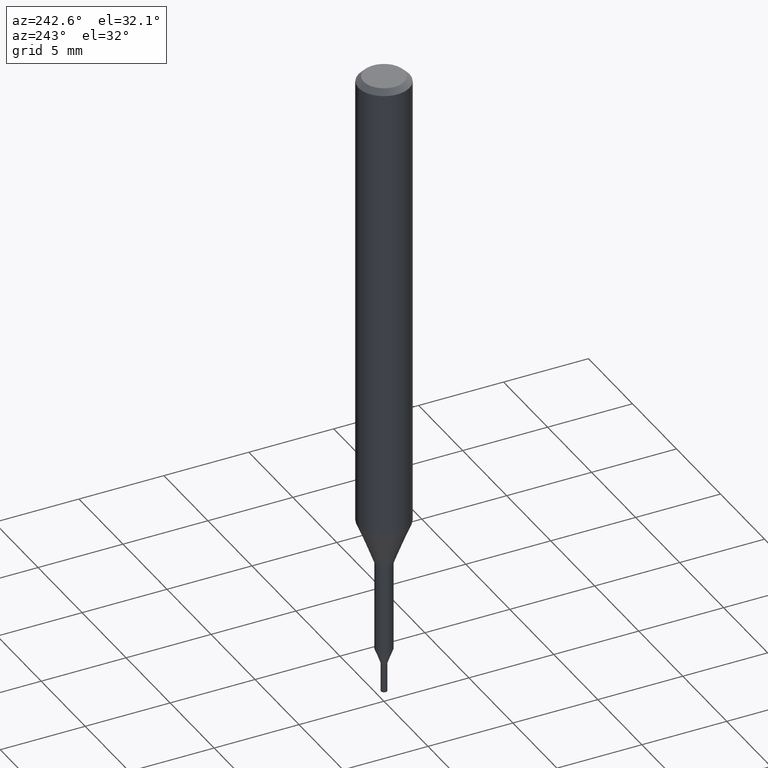
[diagram: clean part render]
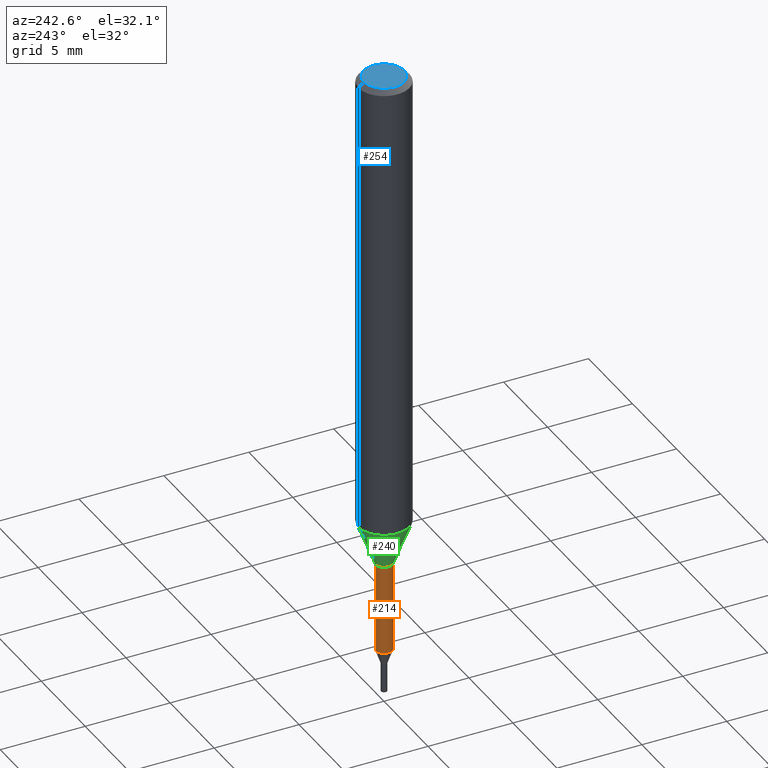
[diagram: same view with three faces highlighted in distinct colors, each labeled with its STEP entity id]
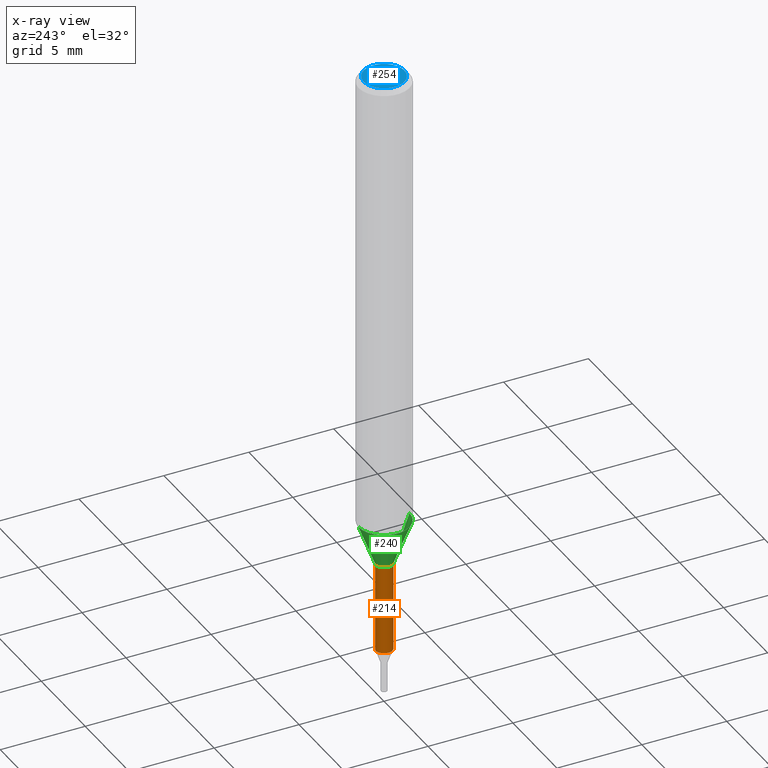
[diagram: x-ray of the same camera — body ghosted, the three highlighted faces saturated]
A machine part, auxiliary view with three faces highlighted in distinct colors.
The next image is the same camera in x-ray (body ghosted, the three faces saturated) — at least one of them is partly hidden behind the body in this view.
Their STEP definitions:

[orange] entity #214 — the highlighted cylindrical surface (edge-blend (fillet) strip) has radius 0.5 mm, axis along (-0, -0, 1).
#114=VERTEX_POINT('',#293);
#130=EDGE_CURVE('',#178,#136,#313,.T.);
#136=VERTEX_POINT('',#319);
#152=EDGE_CURVE('',#114,#136,#337,.T.);
#178=VERTEX_POINT('',#365);
#194=EDGE_CURVE('',#114,#212,#384,.T.);
#212=VERTEX_POINT('',#403);
#214=ADVANCED_FACE('',(#405),#406,.T.);
#250=EDGE_CURVE('',#212,#178,#447,.T.);
#293=CARTESIAN_POINT('',(6.12241946593498E-017,-0.49995,-35.307));
#313=LINE('',#506,#507);
#319=CARTESIAN_POINT('',(0.0,0.49995,-35.307));
#337=CIRCLE('',#540,0.49995);
#365=CARTESIAN_POINT('',(0.0,0.49995,-30.0));
#384=LINE('',#596,#597);
#403=CARTESIAN_POINT('',(6.12241946593498E-017,-0.49995,-30.0));
#405=FACE_OUTER_BOUND('',#622,.T.);
#406=CYLINDRICAL_SURFACE('',#623,0.49995);
#447=CIRCLE('',#680,0.49995);
#506=CARTESIAN_POINT('',(-6.12241946593498E-017,0.49995,-32.6535));
#507=VECTOR('',#754,1.0);
#540=AXIS2_PLACEMENT_3D('',#779,#780,#781);
#596=CARTESIAN_POINT('',(6.12241946593498E-017,-0.49995,-32.6535));
#597=VECTOR('',#836,1.0);
#622=EDGE_LOOP('',(#853,#854,#855,#856));
#623=AXIS2_PLACEMENT_3D('',#857,#858,#859);
#680=AXIS2_PLACEMENT_3D('',#919,#920,#921);
#754=DIRECTION('',(0.0,0.0,-1.0));
#779=CARTESIAN_POINT('',(0.0,0.0,-35.307));
#780=DIRECTION('',(0.0,0.0,-1.0));
#781=DIRECTION('',(0.0,1.0,0.0));
#836=DIRECTION('',(-0.0,-0.0,1.0));
#853=ORIENTED_EDGE('',*,*,#130,.T.);
#854=ORIENTED_EDGE('',*,*,#152,.F.);
#855=ORIENTED_EDGE('',*,*,#194,.T.);
#856=ORIENTED_EDGE('',*,*,#250,.T.);
#857=CARTESIAN_POINT('',(0.0,0.0,-32.6535));
#858=DIRECTION('',(-0.0,-0.0,1.0));
#859=DIRECTION('',(0.0,1.0,0.0));
#919=CARTESIAN_POINT('',(0.0,0.0,-30.0));
#920=DIRECTION('',(0.0,0.0,-1.0));
#921=DIRECTION('',(0.0,1.0,0.0));

[blue] entity #254 — the highlighted planar face has unit normal (-0, 0, 1).
#170=EDGE_CURVE('',#176,#260,#356,.T.);
#176=VERTEX_POINT('',#363);
#228=EDGE_CURVE('',#260,#176,#423,.T.);
#254=ADVANCED_FACE('',(#451),#452,.T.);
#260=VERTEX_POINT('',#458);
#356=CIRCLE('',#564,1.2);
#363=CARTESIAN_POINT('',(0.0,1.2,0.0));
#423=CIRCLE('',#644,1.2);
#451=FACE_OUTER_BOUND('',#685,.T.);
#452=PLANE('',#686);
#458=CARTESIAN_POINT('',(1.46952762458685E-016,-1.2,0.0));
#564=AXIS2_PLACEMENT_3D('',#799,#800,#801);
#644=AXIS2_PLACEMENT_3D('',#887,#888,#889);
#685=EDGE_LOOP('',(#926,#927));
#686=AXIS2_PLACEMENT_3D('',#928,#929,#930);
#799=CARTESIAN_POINT('',(0.0,0.0,0.0));
#800=DIRECTION('',(0.0,0.0,-1.0));
#801=DIRECTION('',(0.0,1.0,0.0));
#887=CARTESIAN_POINT('',(0.0,0.0,0.0));
#888=DIRECTION('',(0.0,0.0,-1.0));
#889=DIRECTION('',(0.0,1.0,0.0));
#926=ORIENTED_EDGE('',*,*,#170,.F.);
#927=ORIENTED_EDGE('',*,*,#228,.F.);
#928=CARTESIAN_POINT('',(0.0,0.6,0.0));
#929=DIRECTION('',(-0.0,0.0,1.0));
#930=DIRECTION('',(0.0,-1.0,0.0));

[green] entity #240 — the highlighted conical surface has half-angle 21.001 deg.
#122=VERTEX_POINT('',#302);
#180=VERTEX_POINT('',#367);
#188=VERTEX_POINT('',#378);
#192=EDGE_CURVE('',#180,#188,#382,.T.);
#202=VERTEX_POINT('',#393);
#230=EDGE_CURVE('',#122,#188,#425,.T.);
#240=ADVANCED_FACE('',(#435),#436,.T.);
#242=EDGE_CURVE('',#122,#202,#438,.T.);
#268=EDGE_CURVE('',#202,#180,#466,.T.);
#302=CARTESIAN_POINT('',(6.12303176911189E-017,-0.5,-30.0));
#367=CARTESIAN_POINT('',(0.0,1.5,-27.395));
#378=CARTESIAN_POINT('',(0.0,0.5,-30.0));
#382=LINE('',#592,#593);
#393=CARTESIAN_POINT('',(1.83690953073357E-016,-1.5,-27.395));
#425=CIRCLE('',#647,0.5);
#435=FACE_OUTER_BOUND('',#663,.T.);
#436=CONICAL_SURFACE('',#664,1.0,0.366530581623394);
#438=LINE('',#667,#668);
#466=CIRCLE('',#706,1.5);
#592=CARTESIAN_POINT('',(-1.22460635382238E-016,1.0,-28.6975));
#593=VECTOR('',#835,1.0);
#647=AXIS2_PLACEMENT_3D('',#890,#891,#892);
#663=EDGE_LOOP('',(#902,#903,#904,#905));
#664=AXIS2_PLACEMENT_3D('',#906,#907,#908);
#667=CARTESIAN_POINT('',(1.22460635382238E-016,-1.0,-28.6975));
#668=VECTOR('',#909,1.0);
#706=AXIS2_PLACEMENT_3D('',#935,#936,#937);
#835=DIRECTION('',(4.38872745501645E-017,-0.35837862847256,-0.933576327171018));
#890=CARTESIAN_POINT('',(0.0,0.0,-30.0));
#891=DIRECTION('',(0.0,0.0,-1.0));
#892=DIRECTION('',(0.0,1.0,0.0));
#902=ORIENTED_EDGE('',*,*,#192,.T.);
#903=ORIENTED_EDGE('',*,*,#230,.F.);
#904=ORIENTED_EDGE('',*,*,#242,.T.);
#905=ORIENTED_EDGE('',*,*,#268,.T.);
#906=CARTESIAN_POINT('',(0.0,0.0,-28.6975));
#907=DIRECTION('',(-0.0,-0.0,1.0));
#908=DIRECTION('',(0.0,1.0,0.0));
#909=DIRECTION('',(4.38872745501645E-017,-0.35837862847256,0.933576327171018));
#935=CARTESIAN_POINT('',(0.0,0.0,-27.395));
#936=DIRECTION('',(0.0,0.0,-1.0));
#937=DIRECTION('',(0.0,1.0,0.0));